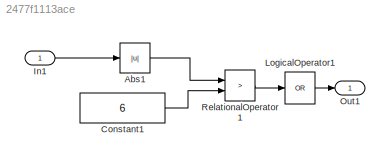
MODEL slx_2477f1113ace
KIND model
CONFIG AbsTol = auto
CONFIG EnableMultiTasking = on
CONFIG FixedStep = 0.200000
CONFIG MaxStep = auto
CONFIG MinStep = auto
CONFIG RelTol = 1e-3
CONFIG SampleTimeConstraint = Unconstrained
CONFIG Solver = FixedStepDiscrete
CONFIG SolverName = FixedStepDiscrete
CONFIG StartTime = 0.0
CONFIG StopTime = 19.8
WORKSPACE source: MAT-file member
WORKSPACE already_pp = 0
BLOCK [Abs] Abs1
  SaturateOnIntegerOverflow = off
BLOCK [Constant] Constant1
  Value = 6
BLOCK [Inport] In1
  IconDisplay = Port number
  OutDataTypeStr = double
  PortDimensions = 4
BLOCK [Logic] LogicalOperator1
  AllPortsSameDT = off
  Inputs = 1
  Operator = OR
  OutDataTypeStr = boolean
  Ports = [1, 1]
BLOCK [Outport] Out1
  IconDisplay = Port number
BLOCK [RelationalOperator] RelationalOperator1
  InputSameDT = off
  Operator = >
  OutDataTypeStr = boolean
  Ports = [2, 1]
LINE Abs1:1 -> RelationalOperator1:1
LINE Constant1:1 -> RelationalOperator1:2
LINE In1:1 -> Abs1:1
LINE LogicalOperator1:1 -> Out1:1
LINE RelationalOperator1:1 -> LogicalOperator1:1
